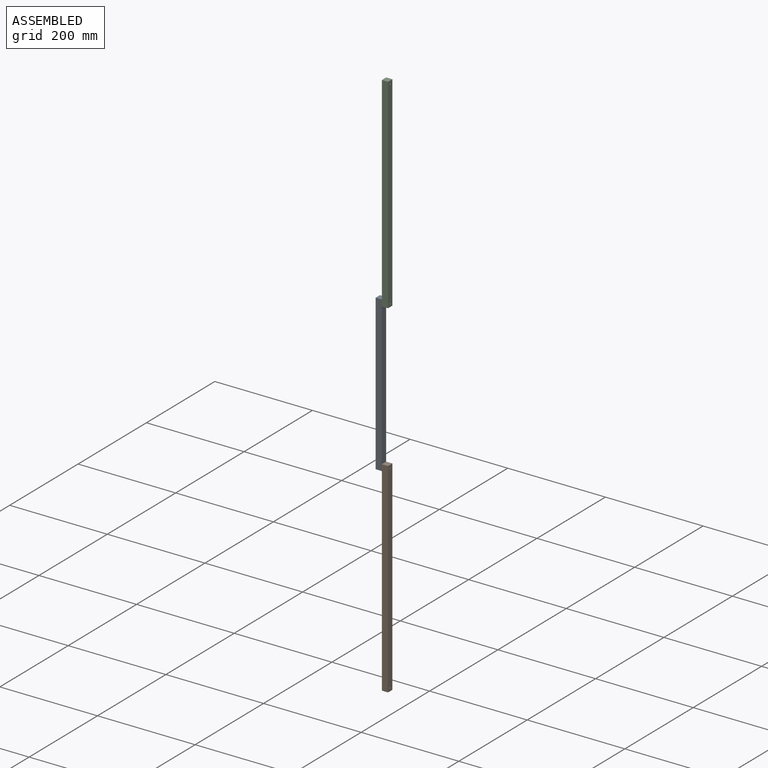
[diagram: assembled view]
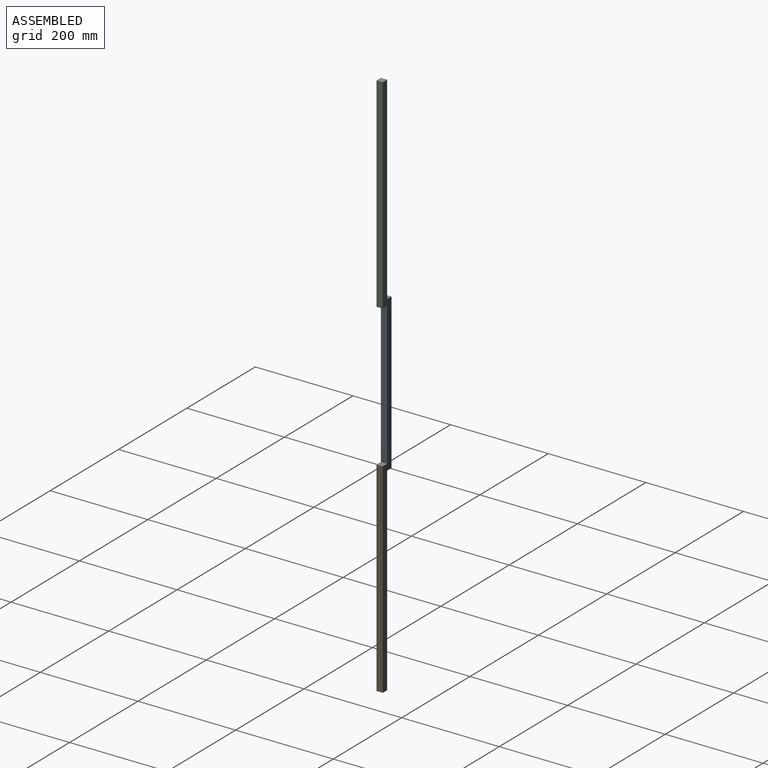
[diagram: assembled view, second angle]
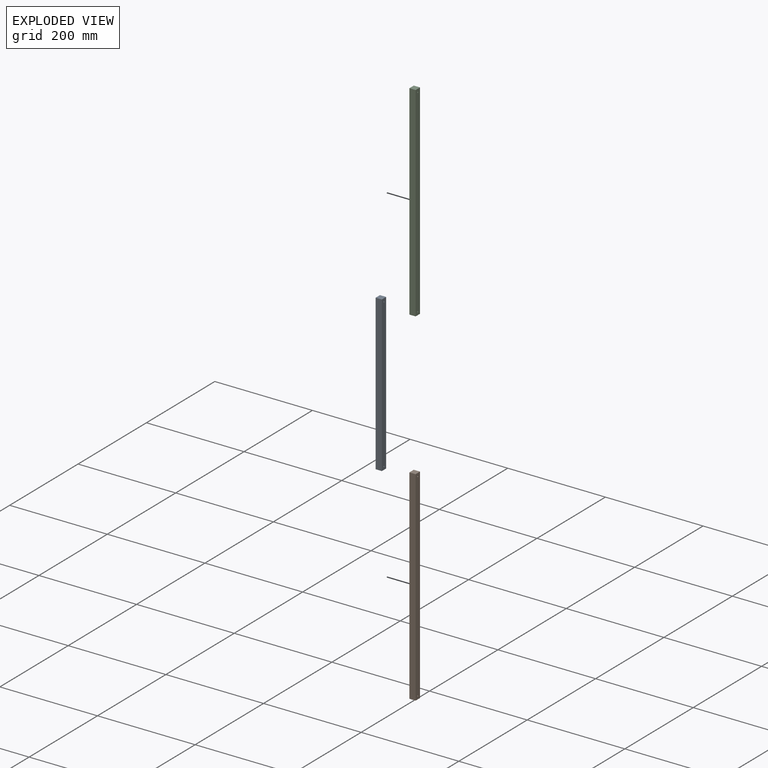
[diagram: exploded view]
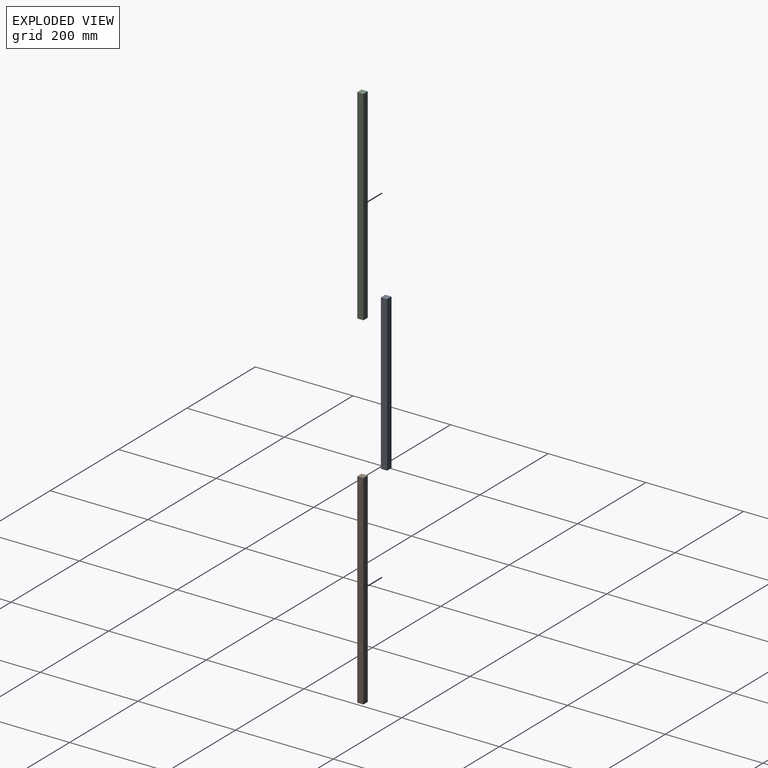
[diagram: exploded view, second angle]
ASSEMBLY  parts=3 mates=2
PART A: 8 faces, bbox 12.7x317.5x12.7 mm
  f0: plane 317.5x12.7mm, normal (0,0,1), area 4032.3mm2, adj f1,f3,f4,f5
  f1: plane 12.7x12.7mm, normal (0,-1,0), area 161.3mm2, adj f0,f2,f4,f5
  f2: plane 317.5x12.7mm, normal (0,0,-1), area 4032.3mm2, adj f1,f3,f4,f5
  f3: plane 12.7x12.7mm, normal (0,1,0), area 161.3mm2, adj f0,f2,f4,f5
  f4: plane 317.5x12.7mm, normal (1,0,0), area 4022.1mm2, adj f0,f1,f2,f3,f6,f7
  f5: plane 317.5x12.7mm, normal (-1,0,0), area 4022.1mm2, adj f0,f1,f2,f3,f6,f7
  f6: cylinder r=1.27mm len=12.7mm, axis (-1,0,0), area 101.3mm2, adj f4,f5
  f7: cylinder r=1.27mm len=12.7mm, axis (-1,0,0), area 101.3mm2, adj f4,f5
PART B: 8 faces, bbox 12.7x419.1x12.7 mm
  f0: plane 419.1x12.7mm, normal (0,0,1), area 5322.6mm2, adj f1,f3,f4,f5
  f1: plane 12.7x12.7mm, normal (0,-1,0), area 161.3mm2, adj f0,f2,f4,f5
  f2: plane 419.1x12.7mm, normal (0,0,-1), area 5322.6mm2, adj f1,f3,f4,f5
  f3: plane 12.7x12.7mm, normal (0,1,0), area 161.3mm2, adj f0,f2,f4,f5
  f4: plane 419.1x12.7mm, normal (1,0,0), area 5312.4mm2, adj f0,f1,f2,f3,f6,f7
  f5: plane 419.1x12.7mm, normal (-1,0,0), area 5312.4mm2, adj f0,f1,f2,f3,f6,f7
  f6: cylinder r=1.27mm len=12.7mm, axis (-1,0,0), area 101.3mm2, adj f4,f5
  f7: cylinder r=1.27mm len=12.7mm, axis (-1,0,0), area 101.3mm2, adj f4,f5
PART C: same geometry as B
PLACE A rot(axis=(-1,0,0),90deg) t=(341.69,531.43,254.71)mm
PLACE B rot(axis=(-1,0,0),90deg) t=(354.39,383.1,-73.49)mm
PLACE C rot(axis=(-1,0,0),90deg) t=(354.39,383.1,637.71)mm
MATE revolute C.f6 <-> A.f6  axis (-1,0,0) through (354.39,532.02,998.44)mm
MATE revolute B.f7 <-> A.f7  axis (-1,0,0) through (354.39,532.02,693.64)mm
